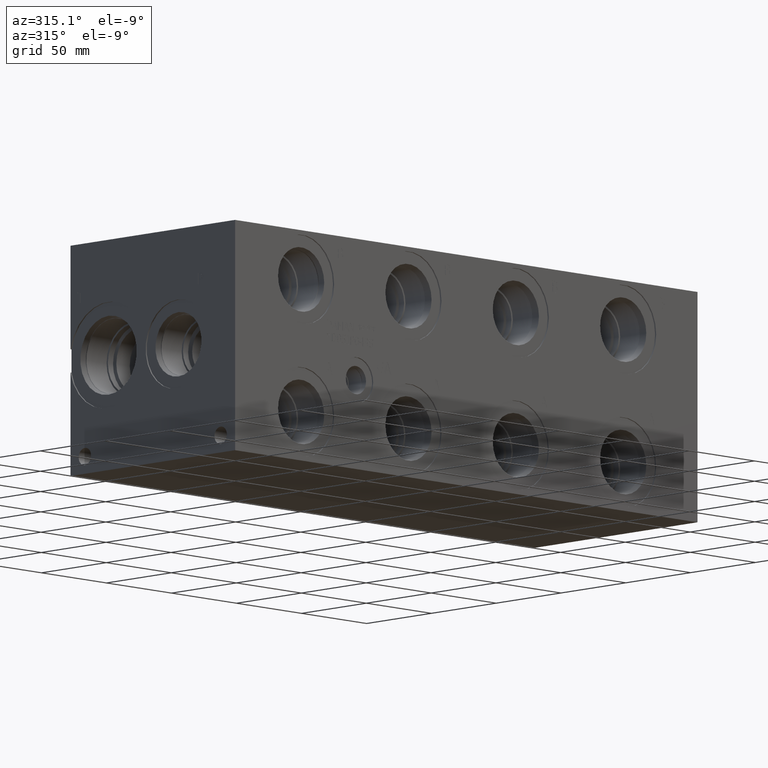
[diagram: clean part render]
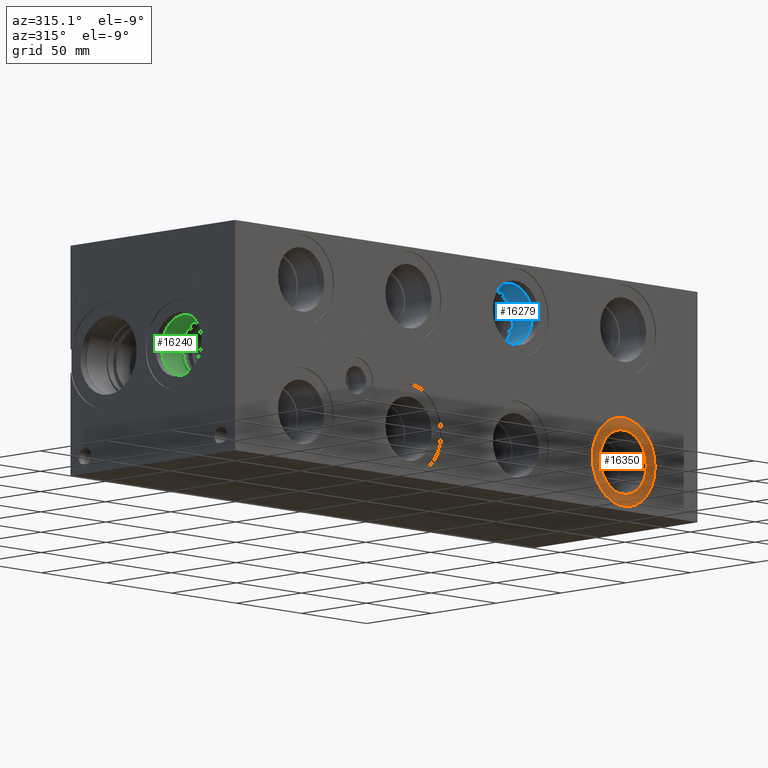
[diagram: same view with three faces highlighted in distinct colors, each labeled with its STEP entity id]
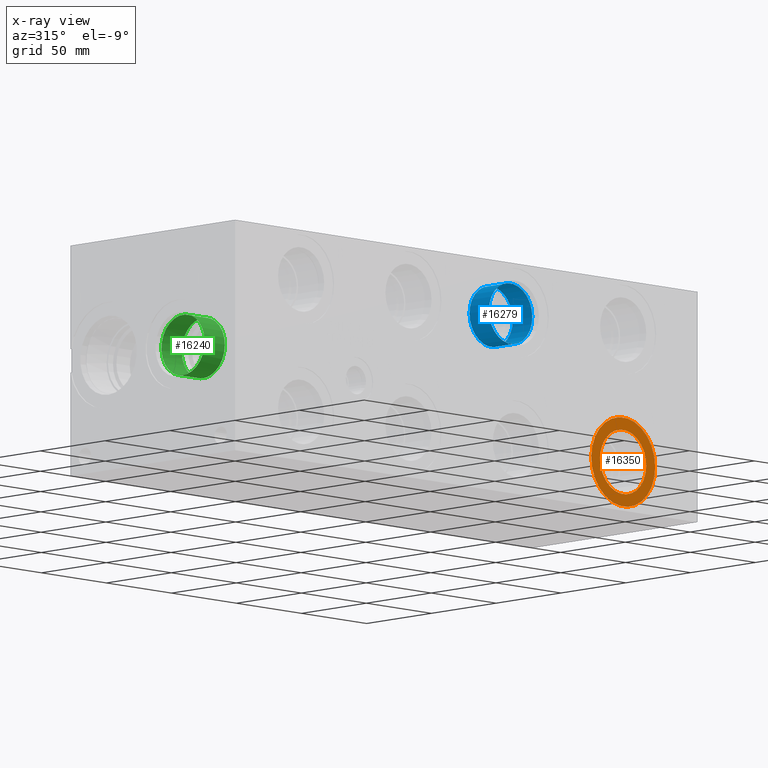
[diagram: x-ray of the same camera — body ghosted, the three highlighted faces saturated]
A machine part, auxiliary view with three faces highlighted in distinct colors.
The next image is the same camera in x-ray (body ghosted, the three faces saturated) — at least one of them is partly hidden behind the body in this view.
Their STEP definitions:

[orange] entity #16350 — the highlighted planar face has unit normal (0, -1, 0).
#505=CIRCLE('',#17293,24.5618);
#506=CIRCLE('',#17294,24.5618);
#507=CIRCLE('',#17295,17.7546);
#830=FACE_BOUND('',#3142,.T.);
#2180=FACE_OUTER_BOUND('',#3141,.T.);
#3141=EDGE_LOOP('',(#13931,#13932));
#3142=EDGE_LOOP('',(#13933));
#7506=VERTEX_POINT('',#27826);
#7507=VERTEX_POINT('',#27827);
#7508=VERTEX_POINT('',#27830);
#9722=EDGE_CURVE('',#7506,#7507,#505,.T.);
#9723=EDGE_CURVE('',#7507,#7506,#506,.T.);
#9724=EDGE_CURVE('',#7508,#7508,#507,.T.);
#13931=ORIENTED_EDGE('',*,*,#9722,.T.);
#13932=ORIENTED_EDGE('',*,*,#9723,.T.);
#13933=ORIENTED_EDGE('',*,*,#9724,.F.);
#15043=PLANE('',#17292);
#16350=ADVANCED_FACE('',(#2180,#830),#15043,.T.);
#17292=AXIS2_PLACEMENT_3D('',#27825,#20571,#20572);
#17293=AXIS2_PLACEMENT_3D('',#27828,#20573,#20574);
#17294=AXIS2_PLACEMENT_3D('',#27829,#20575,#20576);
#17295=AXIS2_PLACEMENT_3D('',#27831,#20577,#20578);
#20571=DIRECTION('center_axis',(0.,-1.,0.));
#20572=DIRECTION('ref_axis',(1.,0.,0.));
#20573=DIRECTION('center_axis',(0.,-1.,0.));
#20574=DIRECTION('ref_axis',(1.,0.,0.));
#20575=DIRECTION('center_axis',(0.,-1.,0.));
#20576=DIRECTION('ref_axis',(1.,0.,0.));
#20577=DIRECTION('center_axis',(0.,-1.,0.));
#20578=DIRECTION('ref_axis',(1.,0.,0.));
#27825=CARTESIAN_POINT('Origin',(299.2374,0.7874,27.0002));
#27826=CARTESIAN_POINT('',(323.7992,0.7874,27.0002));
#27827=CARTESIAN_POINT('',(274.6756,0.7874,27.0002));
#27828=CARTESIAN_POINT('Origin',(299.2374,0.7874,27.0002));
#27829=CARTESIAN_POINT('Origin',(299.2374,0.7874,27.0002));
#27830=CARTESIAN_POINT('',(281.4828,0.7874,27.0002));
#27831=CARTESIAN_POINT('Origin',(299.2374,0.7874,27.0002));

[blue] entity #16279 — the highlighted cylindrical surface (bore or boss wall) has radius 16.6751 mm, axis along (0, -1, 0).
#54=CYLINDRICAL_SURFACE('',#17136,16.6751);
#417=CIRCLE('',#17133,16.6751);
#418=CIRCLE('',#17134,16.6751);
#420=CIRCLE('',#17137,16.6751);
#2109=FACE_OUTER_BOUND('',#3060,.T.);
#3060=EDGE_LOOP('',(#13611,#13612,#13613,#13614,#13615));
#4595=LINE('',#27519,#6028);
#6028=VECTOR('',#20202,16.6751);
#7411=VERTEX_POINT('',#27510);
#7412=VERTEX_POINT('',#27511);
#7414=VERTEX_POINT('',#27517);
#9573=EDGE_CURVE('',#7411,#7412,#417,.T.);
#9574=EDGE_CURVE('',#7412,#7411,#418,.T.);
#9576=EDGE_CURVE('',#7414,#7414,#420,.T.);
#9577=EDGE_CURVE('',#7414,#7412,#4595,.T.);
#13611=ORIENTED_EDGE('',*,*,#9576,.F.);
#13612=ORIENTED_EDGE('',*,*,#9577,.T.);
#13613=ORIENTED_EDGE('',*,*,#9573,.F.);
#13614=ORIENTED_EDGE('',*,*,#9574,.F.);
#13615=ORIENTED_EDGE('',*,*,#9577,.F.);
#16279=ADVANCED_FACE('',(#2109),#54,.F.);
#17133=AXIS2_PLACEMENT_3D('',#27512,#20192,#20193);
#17134=AXIS2_PLACEMENT_3D('',#27513,#20194,#20195);
#17136=AXIS2_PLACEMENT_3D('',#27516,#20198,#20199);
#17137=AXIS2_PLACEMENT_3D('',#27518,#20200,#20201);
#20192=DIRECTION('center_axis',(0.,-1.,0.));
#20193=DIRECTION('ref_axis',(1.,0.,0.));
#20194=DIRECTION('center_axis',(0.,-1.,0.));
#20195=DIRECTION('ref_axis',(1.,0.,0.));
#20198=DIRECTION('center_axis',(0.,-1.,0.));
#20199=DIRECTION('ref_axis',(1.,0.,0.));
#20200=DIRECTION('center_axis',(0.,1.,0.));
#20201=DIRECTION('ref_axis',(1.,0.,0.));
#20202=DIRECTION('',(0.,1.,0.));
#27510=CARTESIAN_POINT('',(233.3625,19.8374,100.0252));
#27511=CARTESIAN_POINT('',(200.0123,19.8374,100.0252));
#27512=CARTESIAN_POINT('Origin',(216.6874,19.8374,100.0252));
#27513=CARTESIAN_POINT('Origin',(216.6874,19.8374,100.0252));
#27516=CARTESIAN_POINT('Origin',(216.6874,9.9187,100.0252));
#27517=CARTESIAN_POINT('',(200.0123,4.8236788467706,100.0252));
#27518=CARTESIAN_POINT('Origin',(216.6874,4.8236788467706,100.0252));
#27519=CARTESIAN_POINT('',(200.0123,9.9187,100.0252));

[green] entity #16240 — the highlighted cylindrical surface (bore or boss wall) has radius 16.67 mm, axis along (-1, 0, 0).
#35=CYLINDRICAL_SURFACE('',#17032,16.67);
#352=CIRCLE('',#17029,16.67);
#353=CIRCLE('',#17030,16.67);
#355=CIRCLE('',#17033,16.67);
#356=CIRCLE('',#17034,16.67);
#2070=FACE_OUTER_BOUND('',#3015,.T.);
#3015=EDGE_LOOP('',(#13422,#13423,#13424,#13425,#13426,#13427));
#4562=LINE('',#27316,#5995);
#5995=VECTOR('',#19961,16.67);
#7344=VERTEX_POINT('',#27306);
#7345=VERTEX_POINT('',#27307);
#7347=VERTEX_POINT('',#27313);
#7348=VERTEX_POINT('',#27314);
#9475=EDGE_CURVE('',#7344,#7345,#352,.T.);
#9476=EDGE_CURVE('',#7345,#7344,#353,.T.);
#9478=EDGE_CURVE('',#7347,#7348,#355,.T.);
#9479=EDGE_CURVE('',#7347,#7345,#4562,.T.);
#9480=EDGE_CURVE('',#7348,#7347,#356,.T.);
#13422=ORIENTED_EDGE('',*,*,#9478,.F.);
#13423=ORIENTED_EDGE('',*,*,#9479,.T.);
#13424=ORIENTED_EDGE('',*,*,#9475,.F.);
#13425=ORIENTED_EDGE('',*,*,#9476,.F.);
#13426=ORIENTED_EDGE('',*,*,#9479,.F.);
#13427=ORIENTED_EDGE('',*,*,#9480,.F.);
#16240=ADVANCED_FACE('',(#2070),#35,.F.);
#17029=AXIS2_PLACEMENT_3D('',#27308,#19951,#19952);
#17030=AXIS2_PLACEMENT_3D('',#27309,#19953,#19954);
#17032=AXIS2_PLACEMENT_3D('',#27312,#19957,#19958);
#17033=AXIS2_PLACEMENT_3D('',#27315,#19959,#19960);
#17034=AXIS2_PLACEMENT_3D('',#27317,#19962,#19963);
#19951=DIRECTION('center_axis',(-1.,0.,0.));
#19952=DIRECTION('ref_axis',(0.,1.,0.));
#19953=DIRECTION('center_axis',(-1.,0.,0.));
#19954=DIRECTION('ref_axis',(0.,1.,0.));
#19957=DIRECTION('center_axis',(-1.,0.,0.));
#19958=DIRECTION('ref_axis',(0.,1.,0.));
#19959=DIRECTION('center_axis',(1.,0.,0.));
#19960=DIRECTION('ref_axis',(0.,1.,0.));
#19961=DIRECTION('',(1.,0.,0.));
#19962=DIRECTION('center_axis',(1.,0.,0.));
#19963=DIRECTION('ref_axis',(0.,1.,0.));
#27306=CARTESIAN_POINT('',(19.8374,61.12,63.5));
#27307=CARTESIAN_POINT('',(19.8374,27.78,63.5));
#27308=CARTESIAN_POINT('Origin',(19.8374,44.45,63.5));
#27309=CARTESIAN_POINT('Origin',(19.8374,44.45,63.5));
#27312=CARTESIAN_POINT('Origin',(9.9187,44.45,63.5));
#27313=CARTESIAN_POINT('',(4.27229999999999,27.78,63.5));
#27314=CARTESIAN_POINT('',(4.27229999999999,44.45,46.83));
#27315=CARTESIAN_POINT('Origin',(4.27229999999999,44.45,63.5));
#27316=CARTESIAN_POINT('',(9.9187,27.78,63.5));
#27317=CARTESIAN_POINT('Origin',(4.27229999999999,44.45,63.5));